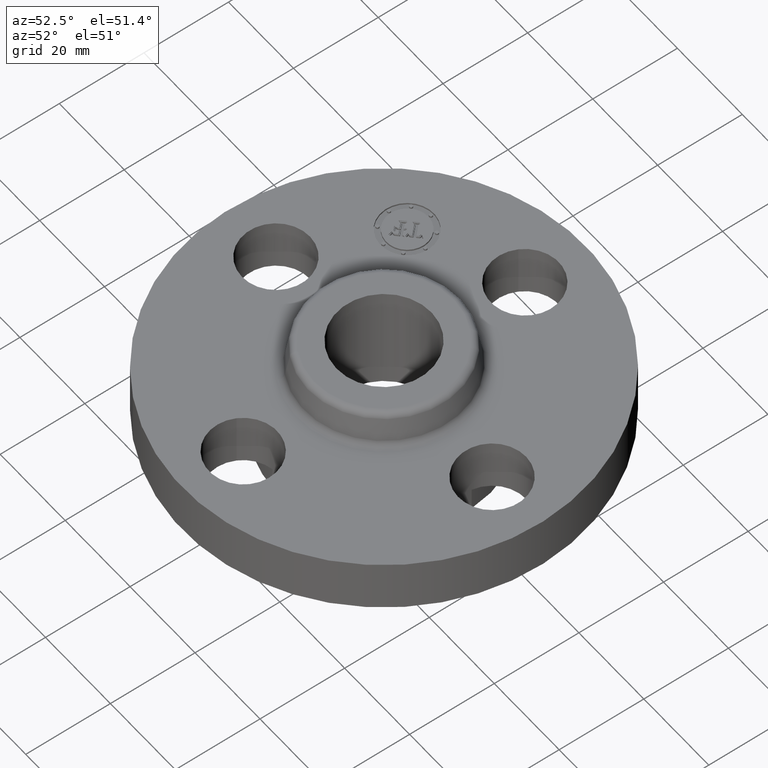
[diagram: clean part render]
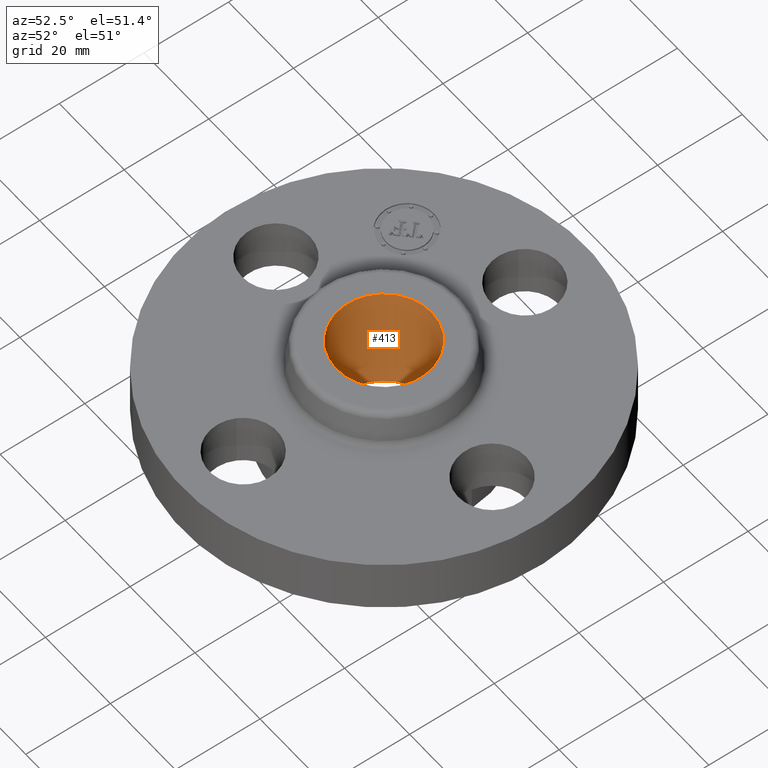
[diagram: same view with one face highlighted and labeled with its STEP entity id]
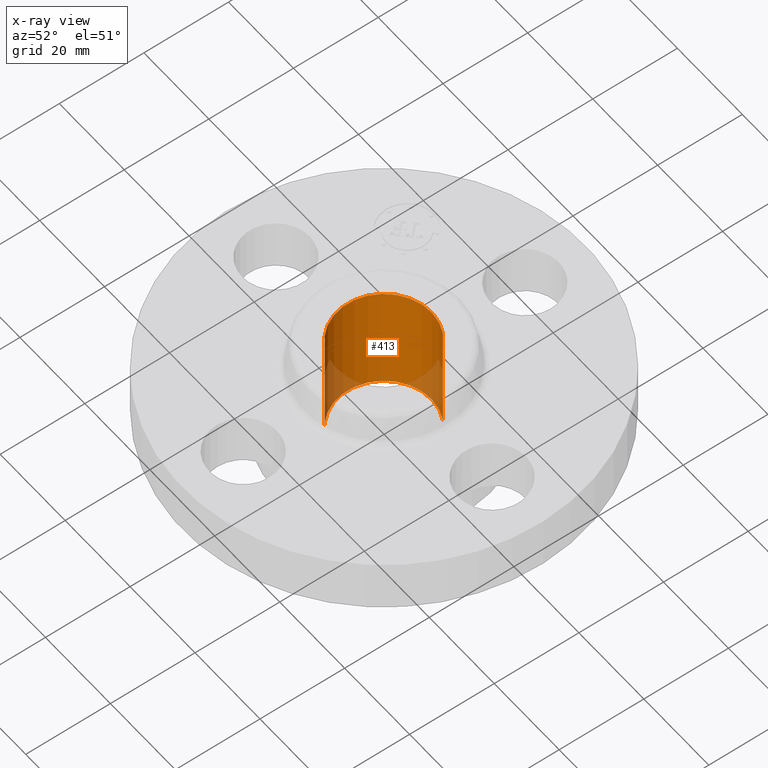
[diagram: x-ray of the same camera — body ghosted, the highlighted face saturated]
A machine part, auxiliary view. The second image highlights one B-rep face of the part: STEP entity #413.
The next image is the same camera in x-ray: the body ghosted, the highlighted face saturated — about 16% of this face is hidden behind the body in this view.
In plain terms, the highlighted cylindrical surface (partial cylindrical patch) has radius 11.176 mm, axis along (0, 0, -1).
Its self-contained STEP definition (entity closure, byte-faithful):
#366=AXIS2_PLACEMENT_3D('Circle Axis2P3D',#364,#365,$) ;
#386=AXIS2_PLACEMENT_3D('Cylinder Axis2P3D',#383,#384,#385) ;
#397=AXIS2_PLACEMENT_3D('Circle Axis2P3D',#395,#396,$) ;
#364=CARTESIAN_POINT('Axis2P3D Location',(0.,0.,0.810000000003)) ;
#368=CARTESIAN_POINT('Vertex',(-0.210947236987,-0.386136327233,0.810000000003)) ;
#370=CARTESIAN_POINT('Vertex',(0.210947236987,0.386136327233,0.810000000003)) ;
#383=CARTESIAN_POINT('Axis2P3D Location',(0.,0.,0.295600000001)) ;
#388=CARTESIAN_POINT('Line Origine',(-0.210947236987,-0.386136327233,0.295600000001)) ;
#392=CARTESIAN_POINT('Vertex',(-0.210947236987,-0.386136327233,-0.218800000001)) ;
#395=CARTESIAN_POINT('Axis2P3D Location',(0.,0.,-0.218800000001)) ;
#399=CARTESIAN_POINT('Vertex',(0.210947236987,0.386136327233,-0.218800000001)) ;
#402=CARTESIAN_POINT('Line Origine',(0.210947236987,0.386136327233,0.295600000001)) ;
#365=DIRECTION('Axis2P3D Direction',(0.,0.,-0.0393700787402)) ;
#384=DIRECTION('Axis2P3D Direction',(0.,0.,-0.0393700787402)) ;
#385=DIRECTION('Axis2P3D XDirection',(0.0188750212049,0.0345504945626,0.)) ;
#389=DIRECTION('Vector Direction',(0.,0.,-0.0393700787402)) ;
#396=DIRECTION('Axis2P3D Direction',(0.,0.,-0.0393700787402)) ;
#403=DIRECTION('Vector Direction',(0.,0.,-0.0393700787402)) ;
#390=VECTOR('Line Direction',#389,0.0393700787402) ;
#404=VECTOR('Line Direction',#403,0.0393700787402) ;
#408=ORIENTED_EDGE('',*,*,#372,.F.) ;
#409=ORIENTED_EDGE('',*,*,#394,.T.) ;
#410=ORIENTED_EDGE('',*,*,#401,.T.) ;
#411=ORIENTED_EDGE('',*,*,#406,.F.) ;
#413=ADVANCED_FACE('PartBody',(#412),#387,.F.) ;
#367=CIRCLE('generated circle',#366,0.440000000002) ;
#398=CIRCLE('generated circle',#397,0.440000000002) ;
#387=CYLINDRICAL_SURFACE('generated cylinder',#386,0.440000000002) ;
#372=EDGE_CURVE('',#369,#371,#367,.T.) ;
#394=EDGE_CURVE('',#369,#393,#391,.T.) ;
#401=EDGE_CURVE('',#393,#400,#398,.T.) ;
#406=EDGE_CURVE('',#371,#400,#405,.T.) ;
#407=EDGE_LOOP('',(#408,#409,#410,#411)) ;
#412=FACE_OUTER_BOUND('',#407,.T.) ;
#391=LINE('Line',#388,#390) ;
#405=LINE('Line',#402,#404) ;
#369=VERTEX_POINT('',#368) ;
#371=VERTEX_POINT('',#370) ;
#393=VERTEX_POINT('',#392) ;
#400=VERTEX_POINT('',#399) ;